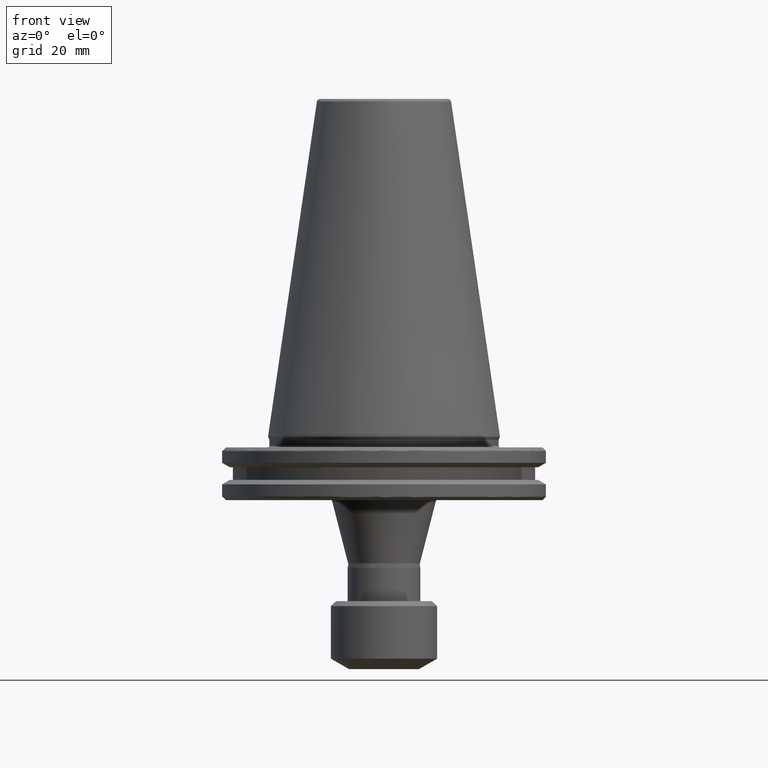
[diagram: clean part render]
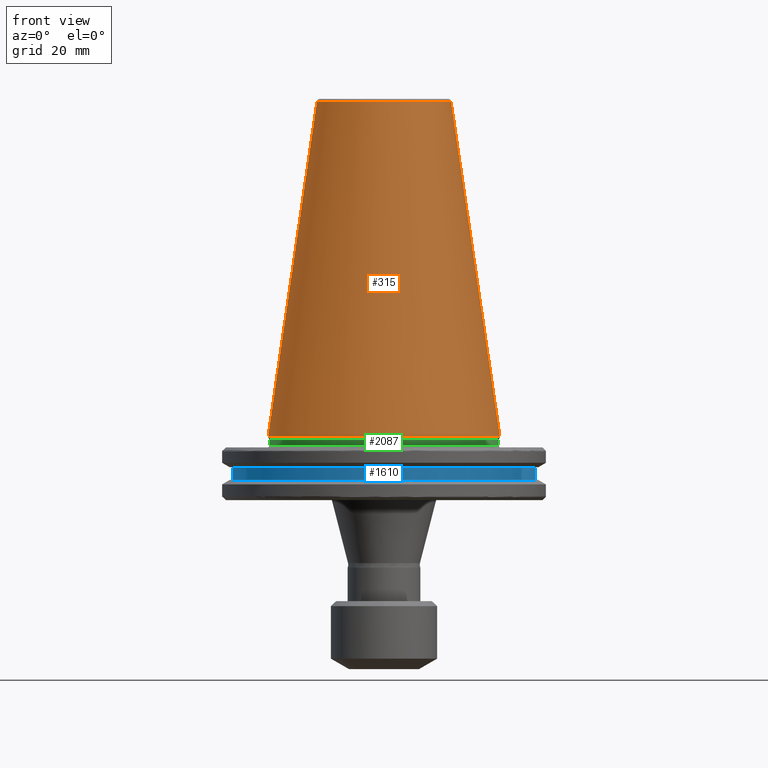
[diagram: same view with three faces highlighted in distinct colors, each labeled with its STEP entity id]
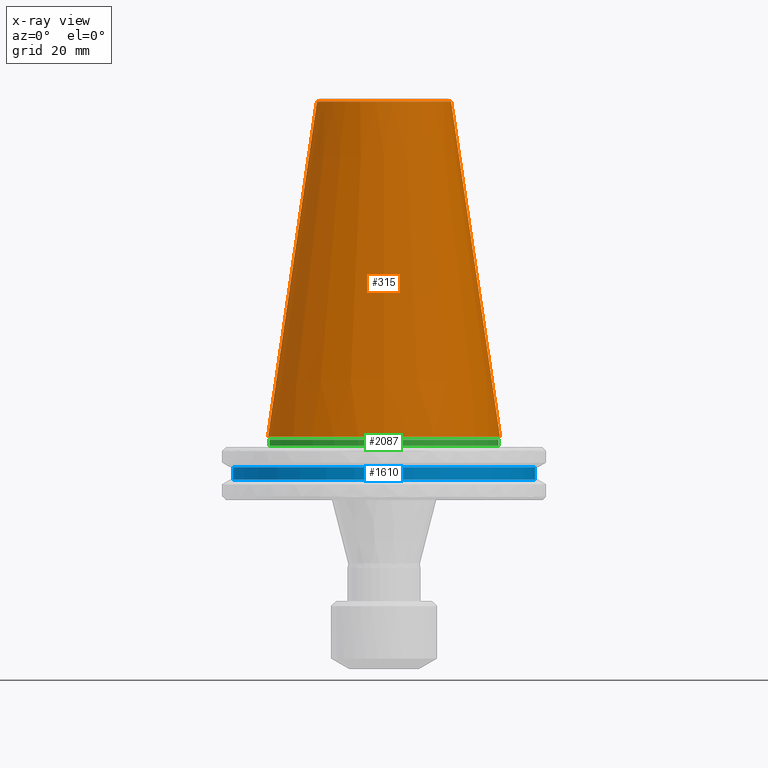
[diagram: x-ray of the same camera — body ghosted, the three highlighted faces saturated]
A machine part, front view with three faces highlighted in distinct colors.
The next image is the same camera in x-ray (body ghosted, the three faces saturated) — at least one of them is partly hidden behind the body in this view.
Their STEP definitions:

[orange] entity #315 — the highlighted conical surface has half-angle 8.297 deg.
#65 = DIRECTION ( 'NONE',  ( -0.1443082272673070200, 0.0000000000000000000, -0.9895327864921743500 ) ) ;
#86 = DIRECTION ( 'NONE',  ( -1.000000000000000000, 0.0000000000000000000, 0.0000000000000000000 ) ) ;
#97 = DIRECTION ( 'NONE',  ( 0.0000000000000000000, 0.0000000000000000000, -1.000000000000000000 ) ) ;
#110 = CARTESIAN_POINT ( 'NONE',  ( 0.0000000000000000000, 0.0000000000000000000, 100.8943082272673000 ) ) ;
#124 = ORIENTED_EDGE ( 'NONE', *, *, #803, .T. ) ;
#184 = ORIENTED_EDGE ( 'NONE', *, *, #2563, .T. ) ;
#266 = ORIENTED_EDGE ( 'NONE', *, *, #523, .F. ) ;
#315 = ADVANCED_FACE ( 'NONE', ( #1438 ), #730, .T. ) ;
#345 = EDGE_CURVE ( 'NONE', #1762, #556, #1455, .T. ) ;
#365 = EDGE_LOOP ( 'NONE', ( #266, #124, #184, #2652 ) ) ;
#459 = LINE ( 'NONE', #565, #2868 ) ;
#523 = EDGE_CURVE ( 'NONE', #2124, #556, #2674, .T. ) ;
#556 = VERTEX_POINT ( 'NONE', #1697 ) ;
#565 = CARTESIAN_POINT ( 'NONE',  ( -34.92499999999999700, 0.0000000000000000000, -1.387778780781445700E-014 ) ) ;
#587 = CARTESIAN_POINT ( 'NONE',  ( -34.92500000000000400, 4.277078946022131700E-015, 0.0000000000000000000 ) ) ;
#730 = CONICAL_SURFACE ( 'NONE', #2078, 34.92499999999999700, 0.1448138465474190200 ) ;
#803 = EDGE_CURVE ( 'NONE', #2124, #2545, #2915, .T. ) ;
#1438 = FACE_OUTER_BOUND ( 'NONE', #365, .T. ) ;
#1455 = CIRCLE ( 'NONE', #2120, 34.92499999999999700 ) ;
#1525 = AXIS2_PLACEMENT_3D ( 'NONE', #110, #97, #86 ) ;
#1579 = DIRECTION ( 'NONE',  ( 0.0000000000000000000, 0.0000000000000000000, -1.000000000000000000 ) ) ;
#1676 = DIRECTION ( 'NONE',  ( -1.000000000000000000, 0.0000000000000000000, 0.0000000000000000000 ) ) ;
#1697 = CARTESIAN_POINT ( 'NONE',  ( 34.92500000000000400, 0.0000000000000000000, 0.0000000000000000000 ) ) ;
#1754 = DIRECTION ( 'NONE',  ( 0.1443082272673070200, 1.767266086135363300E-017, -0.9895327864921743500 ) ) ;
#1762 = VERTEX_POINT ( 'NONE', #587 ) ;
#1779 = CARTESIAN_POINT ( 'NONE',  ( 34.92499999999999700, 4.277078946022130900E-015, -1.387778780781445700E-014 ) ) ;
#2078 = AXIS2_PLACEMENT_3D ( 'NONE', #2169, #1579, #1676 ) ;
#2120 = AXIS2_PLACEMENT_3D ( 'NONE', #2289, #3022, #2324 ) ;
#2124 = VERTEX_POINT ( 'NONE', #2146 ) ;
#2146 = CARTESIAN_POINT ( 'NONE',  ( 20.21110778703756900, 3.376112895941950600E-015, 100.8943082272673000 ) ) ;
#2169 = CARTESIAN_POINT ( 'NONE',  ( 0.0000000000000000000, 0.0000000000000000000, -1.387778780781445700E-014 ) ) ;
#2236 = CARTESIAN_POINT ( 'NONE',  ( -20.21110778703756600, 0.0000000000000000000, 100.8943082272673000 ) ) ;
#2289 = CARTESIAN_POINT ( 'NONE',  ( 0.0000000000000000000, 0.0000000000000000000, 0.0000000000000000000 ) ) ;
#2324 = DIRECTION ( 'NONE',  ( -1.000000000000000000, 0.0000000000000000000, 0.0000000000000000000 ) ) ;
#2545 = VERTEX_POINT ( 'NONE', #2236 ) ;
#2563 = EDGE_CURVE ( 'NONE', #2545, #1762, #459, .T. ) ;
#2652 = ORIENTED_EDGE ( 'NONE', *, *, #345, .T. ) ;
#2674 = LINE ( 'NONE', #1779, #2861 ) ;
#2861 = VECTOR ( 'NONE', #1754, 1000.000000000000000 ) ;
#2868 = VECTOR ( 'NONE', #65, 1000.000000000000000 ) ;
#2915 = CIRCLE ( 'NONE', #1525, 20.21110778703756600 ) ;
#3022 = DIRECTION ( 'NONE',  ( -0.0000000000000000000, -0.0000000000000000000, 1.000000000000000000 ) ) ;

[blue] entity #1610 — the highlighted cylindrical surface (partial cylindrical patch) has radius 45.5 mm, axis along (0, 0, 1).
#16 = EDGE_CURVE ( 'NONE', #1064, #291, #933, .T. ) ;
#187 = AXIS2_PLACEMENT_3D ( 'NONE', #956, #945, #931 ) ;
#291 = VERTEX_POINT ( 'NONE', #2778 ) ;
#312 = DIRECTION ( 'NONE',  ( 1.000000000000000000, 0.0000000000000000000, 0.0000000000000000000 ) ) ;
#347 = EDGE_LOOP ( 'NONE', ( #930, #2928, #1027, #1056 ) ) ;
#555 = VERTEX_POINT ( 'NONE', #1724 ) ;
#577 = DIRECTION ( 'NONE',  ( 0.0000000000000000000, 0.0000000000000000000, 1.000000000000000000 ) ) ;
#585 = DIRECTION ( 'NONE',  ( 0.0000000000000000000, 0.0000000000000000000, 1.000000000000000000 ) ) ;
#623 = AXIS2_PLACEMENT_3D ( 'NONE', #2243, #811, #2456 ) ;
#665 = AXIS2_PLACEMENT_3D ( 'NONE', #2672, #577, #312 ) ;
#733 = LINE ( 'NONE', #840, #1933 ) ;
#781 = CARTESIAN_POINT ( 'NONE',  ( 45.50000000000000000, 0.0000000000000000000, -12.99999999999999800 ) ) ;
#811 = DIRECTION ( 'NONE',  ( -0.0000000000000000000, -0.0000000000000000000, -1.000000000000000000 ) ) ;
#840 = CARTESIAN_POINT ( 'NONE',  ( -45.50000000000000000, 5.572142936120457100E-015, 109.4760732604896600 ) ) ;
#914 = CARTESIAN_POINT ( 'NONE',  ( -45.50000000000000000, 5.572142936120457100E-015, -9.199999999999999300 ) ) ;
#930 = ORIENTED_EDGE ( 'NONE', *, *, #2697, .F. ) ;
#931 = DIRECTION ( 'NONE',  ( 1.000000000000000000, 0.0000000000000000000, 0.0000000000000000000 ) ) ;
#933 = LINE ( 'NONE', #2356, #2533 ) ;
#945 = DIRECTION ( 'NONE',  ( 0.0000000000000000000, 0.0000000000000000000, 1.000000000000000000 ) ) ;
#956 = CARTESIAN_POINT ( 'NONE',  ( 0.0000000000000000000, 0.0000000000000000000, -12.99999999999999800 ) ) ;
#960 = EDGE_CURVE ( 'NONE', #555, #1064, #1935, .T. ) ;
#1027 = ORIENTED_EDGE ( 'NONE', *, *, #16, .T. ) ;
#1056 = ORIENTED_EDGE ( 'NONE', *, *, #2541, .T. ) ;
#1064 = VERTEX_POINT ( 'NONE', #781 ) ;
#1175 = DIRECTION ( 'NONE',  ( 0.0000000000000000000, 0.0000000000000000000, 1.000000000000000000 ) ) ;
#1201 = FACE_OUTER_BOUND ( 'NONE', #347, .T. ) ;
#1423 = VERTEX_POINT ( 'NONE', #914 ) ;
#1610 = ADVANCED_FACE ( 'NONE', ( #1201 ), #2223, .T. ) ;
#1724 = CARTESIAN_POINT ( 'NONE',  ( -45.50000000000000000, 5.572142936120457100E-015, -12.99999999999999800 ) ) ;
#1933 = VECTOR ( 'NONE', #585, 1000.000000000000000 ) ;
#1935 = CIRCLE ( 'NONE', #187, 45.50000000000000000 ) ;
#2223 = CYLINDRICAL_SURFACE ( 'NONE', #665, 45.50000000000000000 ) ;
#2243 = CARTESIAN_POINT ( 'NONE',  ( 0.0000000000000000000, 0.0000000000000000000, -9.199999999999999300 ) ) ;
#2356 = CARTESIAN_POINT ( 'NONE',  ( 45.50000000000000000, 0.0000000000000000000, 109.4760732604896600 ) ) ;
#2456 = DIRECTION ( 'NONE',  ( 1.000000000000000000, 0.0000000000000000000, 0.0000000000000000000 ) ) ;
#2533 = VECTOR ( 'NONE', #1175, 1000.000000000000000 ) ;
#2541 = EDGE_CURVE ( 'NONE', #291, #1423, #2887, .T. ) ;
#2672 = CARTESIAN_POINT ( 'NONE',  ( 0.0000000000000000000, 0.0000000000000000000, 109.4760732604896600 ) ) ;
#2697 = EDGE_CURVE ( 'NONE', #555, #1423, #733, .T. ) ;
#2778 = CARTESIAN_POINT ( 'NONE',  ( 45.50000000000000000, 0.0000000000000000000, -9.199999999999999300 ) ) ;
#2887 = CIRCLE ( 'NONE', #623, 45.50000000000000000 ) ;
#2928 = ORIENTED_EDGE ( 'NONE', *, *, #960, .T. ) ;

[green] entity #2087 — the highlighted cylindrical surface (partial cylindrical patch) has radius 34.5 mm, axis along (0, 0, 1).
#7 = EDGE_CURVE ( 'NONE', #554, #339, #2141, .T. ) ;
#309 = ORIENTED_EDGE ( 'NONE', *, *, #7, .F. ) ;
#339 = VERTEX_POINT ( 'NONE', #2863 ) ;
#407 = DIRECTION ( 'NONE',  ( 0.0000000000000000000, 0.0000000000000000000, 1.000000000000000000 ) ) ;
#415 = VERTEX_POINT ( 'NONE', #1988 ) ;
#554 = VERTEX_POINT ( 'NONE', #1741 ) ;
#611 = EDGE_LOOP ( 'NONE', ( #309, #1341, #2472, #2693 ) ) ;
#638 = AXIS2_PLACEMENT_3D ( 'NONE', #1544, #1532, #1591 ) ;
#657 = FACE_OUTER_BOUND ( 'NONE', #611, .T. ) ;
#812 = AXIS2_PLACEMENT_3D ( 'NONE', #1895, #407, #2131 ) ;
#842 = CARTESIAN_POINT ( 'NONE',  ( 34.50000000000000000, 0.0000000000000000000, -2.700000000000008200 ) ) ;
#848 = EDGE_CURVE ( 'NONE', #1003, #415, #2689, .T. ) ;
#1003 = VERTEX_POINT ( 'NONE', #842 ) ;
#1043 = VECTOR ( 'NONE', #2562, 1000.000000000000000 ) ;
#1079 = EDGE_CURVE ( 'NONE', #554, #1003, #1492, .T. ) ;
#1129 = VECTOR ( 'NONE', #2994, 1000.000000000000000 ) ;
#1341 = ORIENTED_EDGE ( 'NONE', *, *, #1079, .T. ) ;
#1492 = CIRCLE ( 'NONE', #638, 34.50000000000000000 ) ;
#1532 = DIRECTION ( 'NONE',  ( 0.0000000000000000000, 0.0000000000000000000, 1.000000000000000000 ) ) ;
#1544 = CARTESIAN_POINT ( 'NONE',  ( 0.0000000000000000000, 0.0000000000000000000, -2.700000000000008200 ) ) ;
#1591 = DIRECTION ( 'NONE',  ( 1.000000000000000000, 0.0000000000000000000, 0.0000000000000000000 ) ) ;
#1670 = CYLINDRICAL_SURFACE ( 'NONE', #2248, 34.50000000000000000 ) ;
#1741 = CARTESIAN_POINT ( 'NONE',  ( -34.50000000000000000, 4.225031457058368900E-015, -2.700000000000008200 ) ) ;
#1895 = CARTESIAN_POINT ( 'NONE',  ( 0.0000000000000000000, 0.0000000000000000000, -0.9114154412165481600 ) ) ;
#1988 = CARTESIAN_POINT ( 'NONE',  ( 34.50000000000000000, 0.0000000000000000000, -0.9114154412165532700 ) ) ;
#2087 = ADVANCED_FACE ( 'NONE', ( #657 ), #1670, .T. ) ;
#2110 = CIRCLE ( 'NONE', #812, 34.50000000000000000 ) ;
#2131 = DIRECTION ( 'NONE',  ( 1.000000000000000000, 0.0000000000000000000, -1.477029046574455400E-016 ) ) ;
#2141 = LINE ( 'NONE', #2359, #1043 ) ;
#2248 = AXIS2_PLACEMENT_3D ( 'NONE', #2568, #2344, #2810 ) ;
#2344 = DIRECTION ( 'NONE',  ( 0.0000000000000000000, 0.0000000000000000000, 1.000000000000000000 ) ) ;
#2359 = CARTESIAN_POINT ( 'NONE',  ( -34.50000000000000000, 4.225031457058368900E-015, 109.4760732604896600 ) ) ;
#2472 = ORIENTED_EDGE ( 'NONE', *, *, #848, .T. ) ;
#2562 = DIRECTION ( 'NONE',  ( 0.0000000000000000000, 0.0000000000000000000, 1.000000000000000000 ) ) ;
#2568 = CARTESIAN_POINT ( 'NONE',  ( 0.0000000000000000000, 0.0000000000000000000, 109.4760732604896600 ) ) ;
#2689 = LINE ( 'NONE', #2977, #1129 ) ;
#2693 = ORIENTED_EDGE ( 'NONE', *, *, #3038, .F. ) ;
#2810 = DIRECTION ( 'NONE',  ( 1.000000000000000000, 0.0000000000000000000, 0.0000000000000000000 ) ) ;
#2863 = CARTESIAN_POINT ( 'NONE',  ( -34.50000000000000000, 4.225031457058368900E-015, -0.9114154412165481600 ) ) ;
#2977 = CARTESIAN_POINT ( 'NONE',  ( 34.50000000000000000, 0.0000000000000000000, 109.4760732604896600 ) ) ;
#2994 = DIRECTION ( 'NONE',  ( 0.0000000000000000000, 0.0000000000000000000, 1.000000000000000000 ) ) ;
#3038 = EDGE_CURVE ( 'NONE', #339, #415, #2110, .T. ) ;